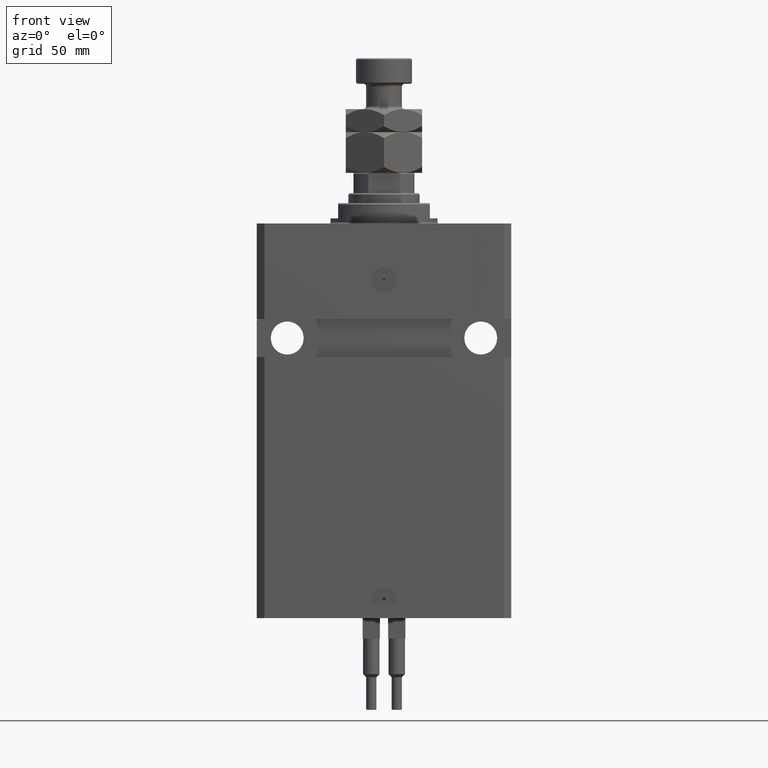
[diagram: clean part render]
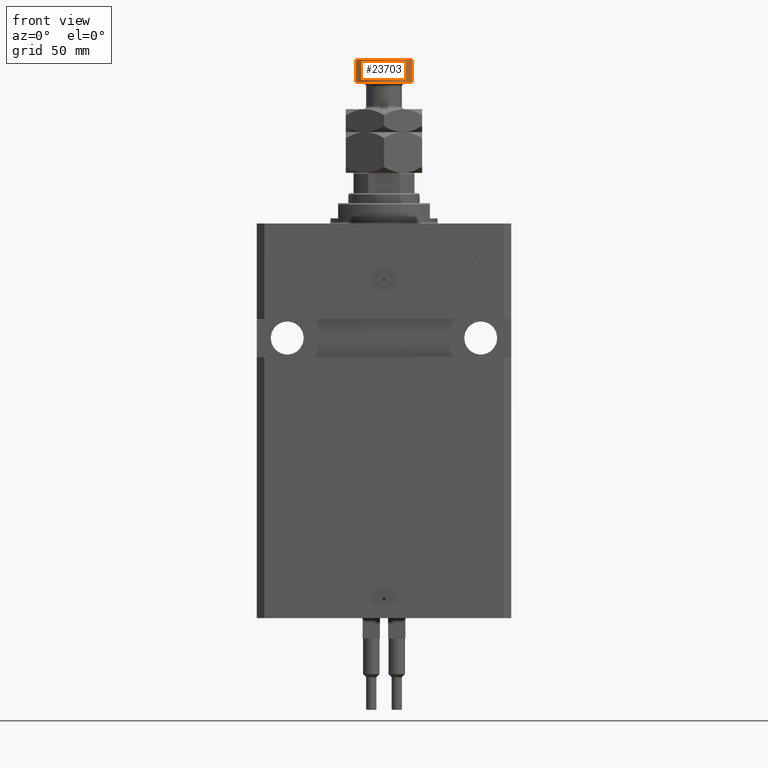
[diagram: same view with one face highlighted and labeled with its STEP entity id]
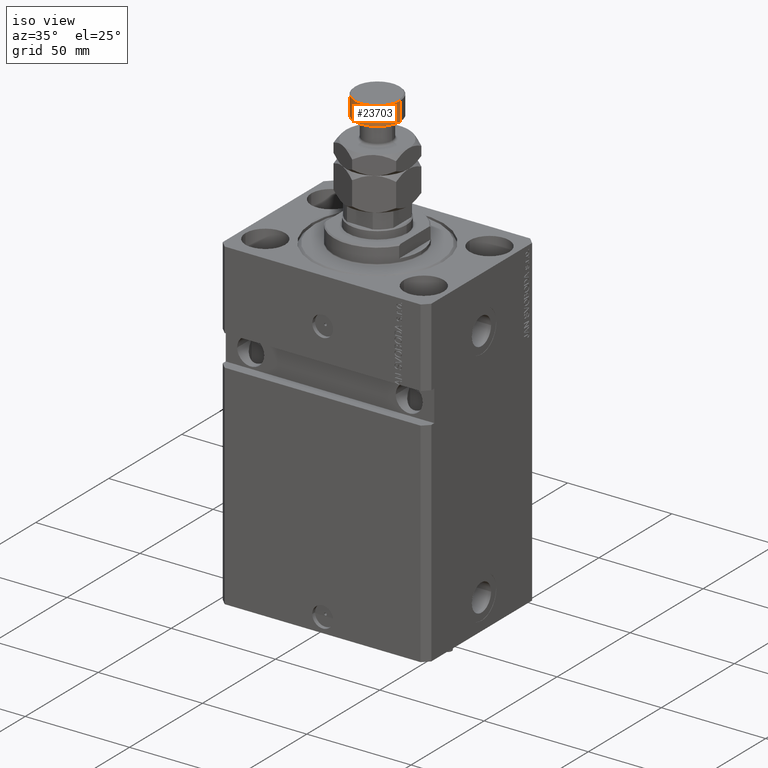
[diagram: same view with one face highlighted and labeled with its STEP entity id]
A machine part, front view. The second image highlights one B-rep face of the part: STEP entity #23703.
A second angle (iso view) of the same face is appended — the face is thin or edge-on in the first view.
In plain terms, the highlighted cylindrical surface (edge-blend (fillet) strip) has radius 11 mm, axis along (-0, -0, -1).
Its self-contained STEP definition (entity closure, byte-faithful):
#648 = LINE ( 'NONE', #39604, #25101 ) ;
#1397 = EDGE_CURVE ( 'NONE', #46589, #4401, #25983, .T. ) ;
#2026 = DIRECTION ( 'NONE',  ( 0.000000000000000000, 0.000000000000000000, -1.000000000000000000 ) ) ;
#4059 = FACE_OUTER_BOUND ( 'NONE', #28021, .T. ) ;
#4401 = VERTEX_POINT ( 'NONE', #39449 ) ;
#6940 = EDGE_CURVE ( 'NONE', #13268, #15642, #36832, .T. ) ;
#7506 = CARTESIAN_POINT ( 'NONE',  ( 11.00000000000000000, 1.347111479062088405E-15, 45.00000000000000711 ) ) ;
#8159 = DIRECTION ( 'NONE',  ( -0.000000000000000000, -0.000000000000000000, -1.000000000000000000 ) ) ;
#13268 = VERTEX_POINT ( 'NONE', #34770 ) ;
#14387 = ORIENTED_EDGE ( 'NONE', *, *, #1397, .T. ) ;
#15107 = CARTESIAN_POINT ( 'NONE',  ( 0.000000000000000000, 0.000000000000000000, 45.00000000000000711 ) ) ;
#15284 = DIRECTION ( 'NONE',  ( 1.000000000000000000, 0.000000000000000000, 0.000000000000000000 ) ) ;
#15642 = VERTEX_POINT ( 'NONE', #49238 ) ;
#16233 = EDGE_CURVE ( 'NONE', #46589, #15642, #18540, .T. ) ;
#17421 = VECTOR ( 'NONE', #42134, 1000.000000000000000 ) ;
#18418 = ORIENTED_EDGE ( 'NONE', *, *, #16233, .F. ) ;
#18540 = LINE ( 'NONE', #7506, #17421 ) ;
#19709 = CYLINDRICAL_SURFACE ( 'NONE', #27411, 11.00000000000000000 ) ;
#23472 = DIRECTION ( 'NONE',  ( -0.000000000000000000, -0.000000000000000000, 1.000000000000000000 ) ) ;
#23703 = ADVANCED_FACE ( 'NONE', ( #4059 ), #19709, .T. ) ;
#25101 = VECTOR ( 'NONE', #47057, 1000.000000000000000 ) ;
#25983 = CIRCLE ( 'NONE', #37464, 11.00000000000000000 ) ;
#27411 = AXIS2_PLACEMENT_3D ( 'NONE', #15107, #8159, #27905 ) ;
#27905 = DIRECTION ( 'NONE',  ( -1.000000000000000000, 0.000000000000000000, 0.000000000000000000 ) ) ;
#27938 = ORIENTED_EDGE ( 'NONE', *, *, #48680, .T. ) ;
#28021 = EDGE_LOOP ( 'NONE', ( #18418, #14387, #27938, #45829 ) ) ;
#29699 = CARTESIAN_POINT ( 'NONE',  ( 0.000000000000000000, 0.000000000000000000, 44.50000000000001421 ) ) ;
#33501 = CARTESIAN_POINT ( 'NONE',  ( 0.000000000000000000, 0.000000000000000000, 35.50000000000001421 ) ) ;
#34770 = CARTESIAN_POINT ( 'NONE',  ( -11.00000000000000000, 0.000000000000000000, 35.50000000000001421 ) ) ;
#36832 = CIRCLE ( 'NONE', #49113, 11.00000000000000000 ) ;
#37431 = CARTESIAN_POINT ( 'NONE',  ( 11.00000000000000000, 1.347111479062088405E-15, 44.50000000000001421 ) ) ;
#37464 = AXIS2_PLACEMENT_3D ( 'NONE', #29699, #2026, #45346 ) ;
#39449 = CARTESIAN_POINT ( 'NONE',  ( -11.00000000000000000, 0.000000000000000000, 44.50000000000001421 ) ) ;
#39604 = CARTESIAN_POINT ( 'NONE',  ( -11.00000000000000000, 0.000000000000000000, 45.00000000000000711 ) ) ;
#42134 = DIRECTION ( 'NONE',  ( -0.000000000000000000, -0.000000000000000000, -1.000000000000000000 ) ) ;
#45346 = DIRECTION ( 'NONE',  ( 1.000000000000000000, 0.000000000000000000, 0.000000000000000000 ) ) ;
#45829 = ORIENTED_EDGE ( 'NONE', *, *, #6940, .T. ) ;
#46589 = VERTEX_POINT ( 'NONE', #37431 ) ;
#47057 = DIRECTION ( 'NONE',  ( -0.000000000000000000, -0.000000000000000000, -1.000000000000000000 ) ) ;
#48680 = EDGE_CURVE ( 'NONE', #4401, #13268, #648, .T. ) ;
#49113 = AXIS2_PLACEMENT_3D ( 'NONE', #33501, #23472, #15284 ) ;
#49238 = CARTESIAN_POINT ( 'NONE',  ( 11.00000000000000000, 1.347111479062088405E-15, 35.50000000000001421 ) ) ;